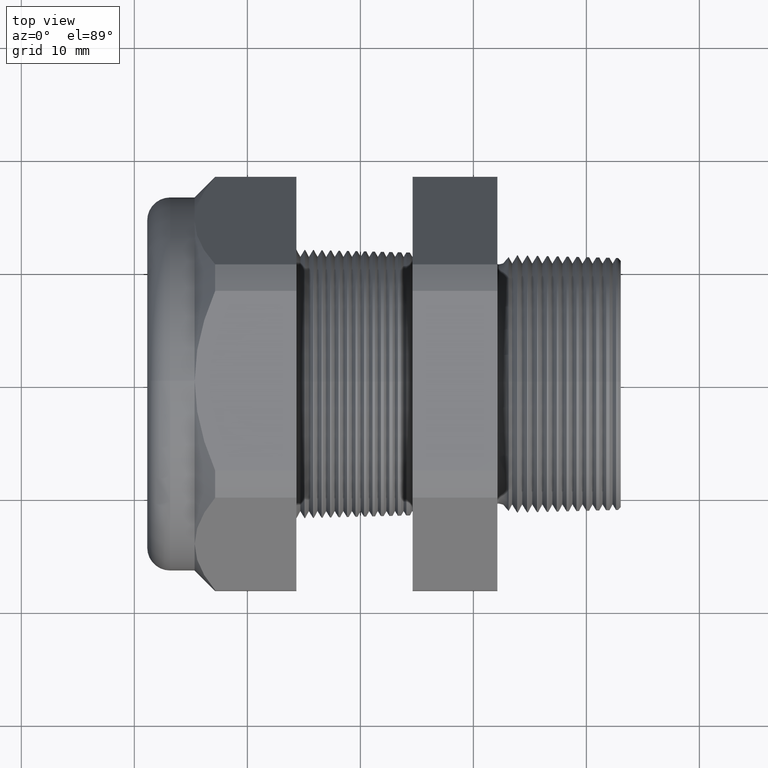
[diagram: clean part render]
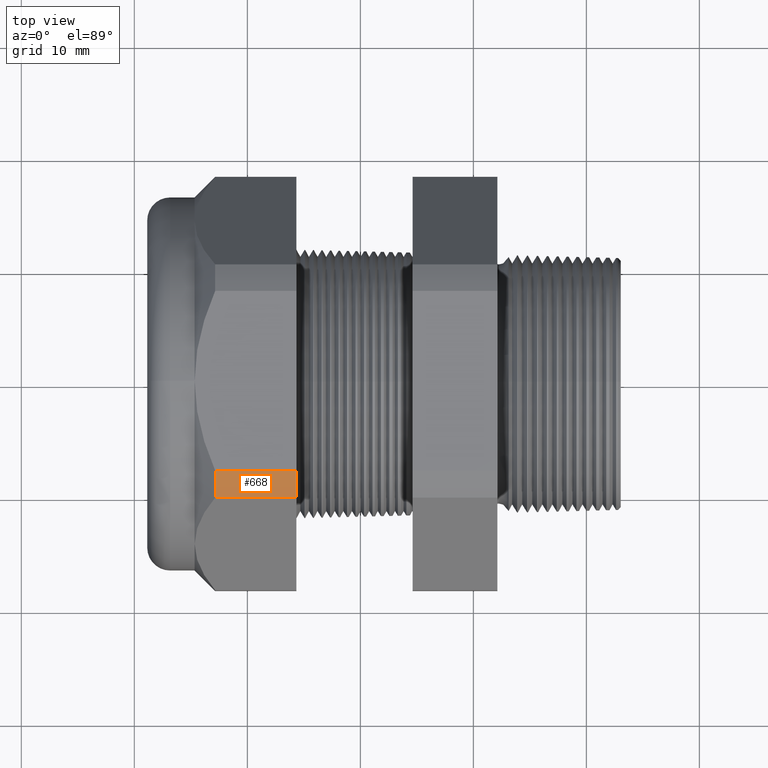
[diagram: same view with one face highlighted and labeled with its STEP entity id]
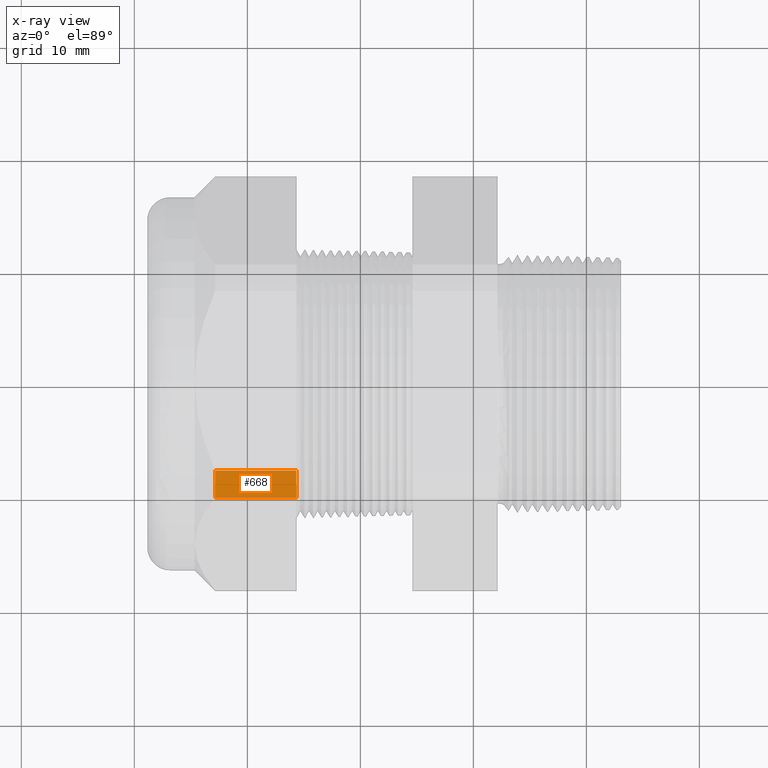
[diagram: x-ray of the same camera — body ghosted, the highlighted face saturated]
A machine part, top view. The second image highlights one B-rep face of the part: STEP entity #668.
The next image is the same camera in x-ray: the body ghosted, the highlighted face saturated — about 0% of this face is hidden behind the body in this view.
In plain terms, the highlighted cylindrical surface (partial cylindrical patch) has radius 18.3261 mm, axis along (-1, 0, 0).
Its self-contained STEP definition (entity closure, byte-faithful):
#640 = EDGE_LOOP ( 'NONE', ( #641, #645, #647, #648 ) ) ;
#641 = ORIENTED_EDGE ( 'NONE', *, *, #642, .T. ) ;
#642 = EDGE_CURVE ( 'NONE', #643, #644, #3898, .T. ) ;
#643 = VERTEX_POINT ( 'NONE', #3894 ) ;
#644 = VERTEX_POINT ( 'NONE', #3893 ) ;
#645 = ORIENTED_EDGE ( 'NONE', *, *, #646, .T. ) ;
#646 = EDGE_CURVE ( 'NONE', #644, #659, #3891, .T. ) ;
#647 = ORIENTED_EDGE ( 'NONE', *, *, #657, .F. ) ;
#648 = ORIENTED_EDGE ( 'NONE', *, *, #649, .F. ) ;
#649 = EDGE_CURVE ( 'NONE', #643, #658, #3886, .T. ) ;
#657 = EDGE_CURVE ( 'NONE', #658, #659, #3868, .T. ) ;
#658 = VERTEX_POINT ( 'NONE', #3924 ) ;
#659 = VERTEX_POINT ( 'NONE', #3923 ) ;
#668 = ADVANCED_FACE ( 'NONE', ( #3960 ), #3959, .T. ) ;
#3868 = LINE ( 'NONE', #3928, #3927 ) ;
#3883 = DIRECTION ( 'NONE',  ( 0.0000000000000000000, 0.0000000000000000000, -1.000000000000000000 ) ) ;
#3884 = DIRECTION ( 'NONE',  ( 1.000000000000000000, 0.0000000000000000000, 0.0000000000000000000 ) ) ;
#3885 = AXIS2_PLACEMENT_3D ( 'NONE', #3892, #3884, #3883 ) ;
#3886 = CIRCLE ( 'NONE', #3885, 0.7215000000000000300 ) ;
#3887 = DIRECTION ( 'NONE',  ( 0.0000000000000000000, 0.0000000000000000000, -1.000000000000000000 ) ) ;
#3888 = DIRECTION ( 'NONE',  ( 1.000000000000000000, 0.0000000000000000000, 0.0000000000000000000 ) ) ;
#3889 = CARTESIAN_POINT ( 'NONE',  ( -1.293145669291338600, 0.0000000000000000000, 0.0000000000000000000 ) ) ;
#3890 = AXIS2_PLACEMENT_3D ( 'NONE', #3889, #3888, #3887 ) ;
#3891 = CIRCLE ( 'NONE', #3890, 0.7215000000000000300 ) ;
#3892 = CARTESIAN_POINT ( 'NONE',  ( -1.010314960629921100, 0.0000000000000000000, 0.0000000000000000000 ) ) ;
#3893 = CARTESIAN_POINT ( 'NONE',  ( -1.293145669291338800, -0.3131489262315937900, 0.6499999999999999100 ) ) ;
#3894 = CARTESIAN_POINT ( 'NONE',  ( -1.010314960629921100, -0.3131489262315937400, 0.6500000000000000200 ) ) ;
#3895 = DIRECTION ( 'NONE',  ( -1.000000000000000000, 0.0000000000000000000, 0.0000000000000000000 ) ) ;
#3896 = VECTOR ( 'NONE', #3895, 39.37007874015748100 ) ;
#3897 = CARTESIAN_POINT ( 'NONE',  ( 0.1200000000000000900, -0.3131489262315937400, 0.6500000000000000200 ) ) ;
#3898 = LINE ( 'NONE', #3897, #3896 ) ;
#3923 = CARTESIAN_POINT ( 'NONE',  ( -1.293145669291338600, -0.4063420493440885700, 0.5961949252843791200 ) ) ;
#3924 = CARTESIAN_POINT ( 'NONE',  ( -1.010314960629921100, -0.4063420493440885700, 0.5961949252843791200 ) ) ;
#3925 = DIRECTION ( 'NONE',  ( -1.000000000000000000, 0.0000000000000000000, 0.0000000000000000000 ) ) ;
#3927 = VECTOR ( 'NONE', #3925, 39.37007874015748100 ) ;
#3928 = CARTESIAN_POINT ( 'NONE',  ( 0.1200000000000000900, -0.4063420493440885700, 0.5961949252843791200 ) ) ;
#3953 = DIRECTION ( 'NONE',  ( 0.0000000000000000000, 0.0000000000000000000, 1.000000000000000000 ) ) ;
#3954 = DIRECTION ( 'NONE',  ( -1.000000000000000000, 0.0000000000000000000, 0.0000000000000000000 ) ) ;
#3956 = CARTESIAN_POINT ( 'NONE',  ( 0.1200000000000000900, 0.0000000000000000000, 0.0000000000000000000 ) ) ;
#3957 = AXIS2_PLACEMENT_3D ( 'NONE', #3956, #3954, #3953 ) ;
#3959 = CYLINDRICAL_SURFACE ( 'NONE', #3957, 0.7215000000000000300 ) ;
#3960 = FACE_OUTER_BOUND ( 'NONE', #640, .T. ) ;